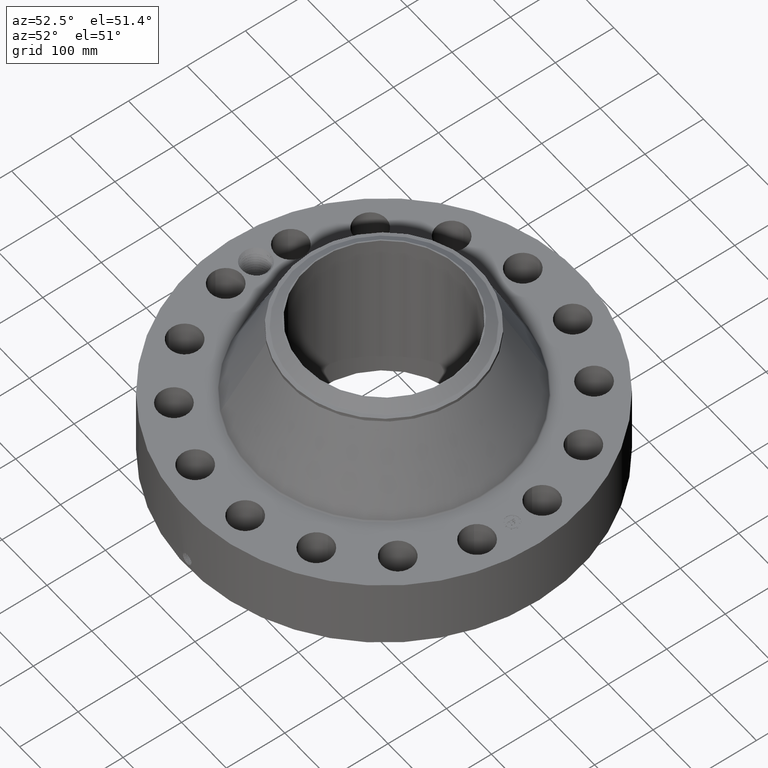
[diagram: clean part render]
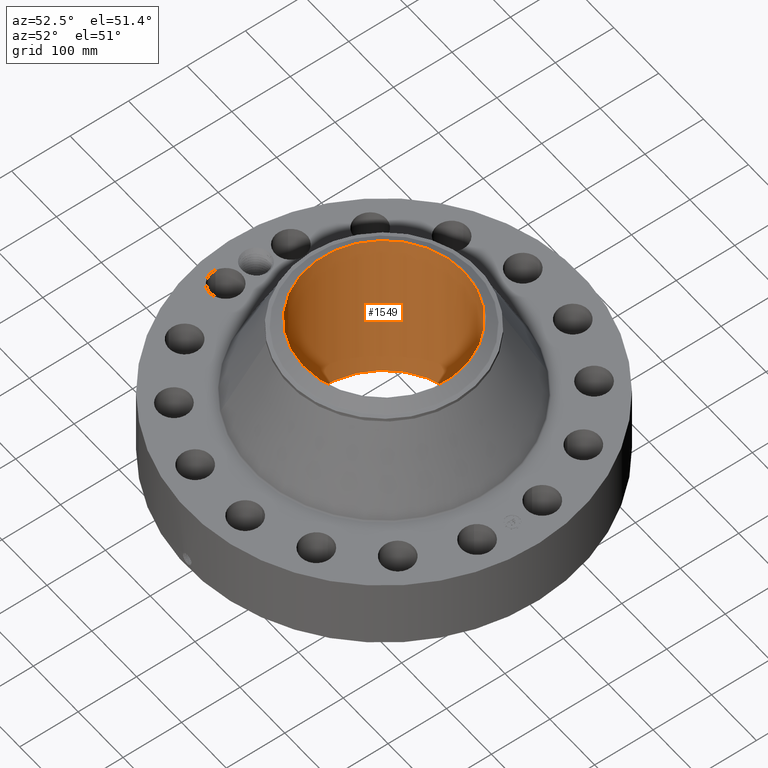
[diagram: same view with one face highlighted and labeled with its STEP entity id]
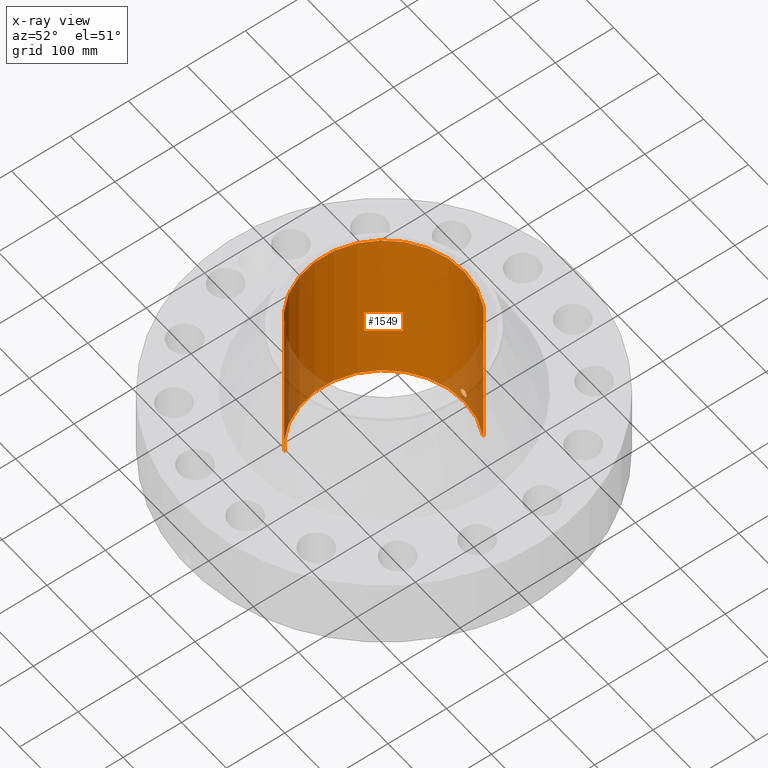
[diagram: x-ray of the same camera — body ghosted, the highlighted face saturated]
A machine part, auxiliary view. The second image highlights one B-rep face of the part: STEP entity #1549.
The next image is the same camera in x-ray: the body ghosted, the highlighted face saturated — about 12% of this face is hidden behind the body in this view.
In plain terms, the highlighted cylindrical surface (partial cylindrical patch) has radius 136.525 mm, axis along (0, 0, -1).
Its self-contained STEP definition (entity closure, byte-faithful):
#271=AXIS2_PLACEMENT_3D('Circle Axis2P3D',#269,#270,$) ;
#1426=AXIS2_PLACEMENT_3D('Cylinder Axis2P3D',#1423,#1424,#1425) ;
#1498=AXIS2_PLACEMENT_3D('Circle Axis2P3D',#1496,#1497,$) ;
#264=CARTESIAN_POINT('Vertex',(2.57691227001,4.71700627018,0.250000000001)) ;
#266=CARTESIAN_POINT('Vertex',(-2.57691227001,-4.71700627018,0.250000000001)) ;
#269=CARTESIAN_POINT('Axis2P3D Location',(0.,0.,0.250000000001)) ;
#1423=CARTESIAN_POINT('Axis2P3D Location',(0.,0.,5.81000000002)) ;
#1432=CARTESIAN_POINT('Vertex',(2.57691227001,4.71700627018,11.37)) ;
#1434=CARTESIAN_POINT('Vertex',(-2.57691227001,-4.71700627018,11.37)) ;
#1437=CARTESIAN_POINT('Line Origine',(2.57691227001,4.71700627018,5.81000000002)) ;
#1442=CARTESIAN_POINT('Line Origine',(-2.57691227001,-4.71700627018,5.81000000002)) ;
#1496=CARTESIAN_POINT('Axis2P3D Location',(0.,0.,11.37)) ;
#1508=CARTESIAN_POINT('Control Point',(0.219395640473,5.37052051045,1.05985638466)) ;
#1509=CARTESIAN_POINT('Control Point',(0.206921684834,5.37103009448,1.0826898073)) ;
#1510=CARTESIAN_POINT('Control Point',(0.191478074429,5.3716247178,1.1038989808)) ;
#1511=CARTESIAN_POINT('Control Point',(0.173344737002,5.37225844318,1.12297077882)) ;
#1512=CARTESIAN_POINT('Control Point',(0.11213345842,5.3740914513,1.17245128575)) ;
#1513=CARTESIAN_POINT('Control Point',(0.0349764935939,5.37528235123,1.19597480752)) ;
#1514=CARTESIAN_POINT('Control Point',(-0.0195660182392,5.37537126655,1.19761228245)) ;
#1515=CARTESIAN_POINT('Control Point',(-0.124153074267,5.37406025242,1.17246700446)) ;
#1516=CARTESIAN_POINT('Control Point',(-0.203198974554,5.37134695756,1.09954893047)) ;
#1517=CARTESIAN_POINT('Control Point',(-0.232174051122,5.37001129445,1.05333021742)) ;
#1518=CARTESIAN_POINT('Control Point',(-0.255834445272,5.36891195524,0.975175509184)) ;
#1519=CARTESIAN_POINT('Control Point',(-0.248293521109,5.3692620356,0.895790868788)) ;
#1520=CARTESIAN_POINT('Control Point',(-0.24205948917,5.36955569445,0.869211169588)) ;
#1521=CARTESIAN_POINT('Control Point',(-0.232322077127,5.36999244174,0.843805298931)) ;
#1522=CARTESIAN_POINT('Control Point',(-0.219395640473,5.37052051045,0.820143615352)) ;
#1523=CARTESIAN_POINT('Vertex',(0.219395640473,5.37052051045,1.05985638466)) ;
#1525=CARTESIAN_POINT('Vertex',(-0.219395640473,5.37052051045,0.820143615352)) ;
#1529=CARTESIAN_POINT('Control Point',(-0.219395640473,5.37052051045,0.820143615352)) ;
#1530=CARTESIAN_POINT('Control Point',(-0.206921684833,5.37103009448,0.797310192712)) ;
#1531=CARTESIAN_POINT('Control Point',(-0.191478074428,5.3716247178,0.776101019206)) ;
#1532=CARTESIAN_POINT('Control Point',(-0.173344737006,5.37225844318,0.757029221191)) ;
#1533=CARTESIAN_POINT('Control Point',(-0.112133458429,5.3740914513,0.707548714262)) ;
#1534=CARTESIAN_POINT('Control Point',(-0.0349764936092,5.37528235123,0.68402519249)) ;
#1535=CARTESIAN_POINT('Control Point',(0.0195660182458,5.37537126655,0.682387717557)) ;
#1536=CARTESIAN_POINT('Control Point',(0.12415307426,5.37406025242,0.707532995552)) ;
#1537=CARTESIAN_POINT('Control Point',(0.203198974541,5.37134695756,0.780451069523)) ;
#1538=CARTESIAN_POINT('Control Point',(0.232174051123,5.37001129445,0.826669782592)) ;
#1539=CARTESIAN_POINT('Control Point',(0.255834445286,5.36891195524,0.904824490873)) ;
#1540=CARTESIAN_POINT('Control Point',(0.2482935211,5.3692620356,0.98420913131)) ;
#1541=CARTESIAN_POINT('Control Point',(0.242059489205,5.36955569445,1.01078883033)) ;
#1542=CARTESIAN_POINT('Control Point',(0.232322077149,5.36999244174,1.03619470104)) ;
#1543=CARTESIAN_POINT('Control Point',(0.219395640473,5.37052051045,1.05985638466)) ;
#270=DIRECTION('Axis2P3D Direction',(0.,0.,-0.0393700787402)) ;
#1424=DIRECTION('Axis2P3D Direction',(0.,0.,-0.0393700787402)) ;
#1425=DIRECTION('Axis2P3D XDirection',(-0.0188750212049,-0.0345504945626,0.)) ;
#1438=DIRECTION('Vector Direction',(0.,0.,-0.0393700787402)) ;
#1443=DIRECTION('Vector Direction',(0.,0.,-0.0393700787402)) ;
#1497=DIRECTION('Axis2P3D Direction',(0.,0.,-0.0393700787402)) ;
#1439=VECTOR('Line Direction',#1438,0.0393700787402) ;
#1444=VECTOR('Line Direction',#1443,0.0393700787402) ;
#1502=ORIENTED_EDGE('',*,*,#1500,.F.) ;
#1503=ORIENTED_EDGE('',*,*,#1446,.T.) ;
#1504=ORIENTED_EDGE('',*,*,#273,.T.) ;
#1505=ORIENTED_EDGE('',*,*,#1441,.F.) ;
#1546=ORIENTED_EDGE('',*,*,#1527,.F.) ;
#1547=ORIENTED_EDGE('',*,*,#1544,.F.) ;
#1548=FACE_BOUND('',#1545,.T.) ;
#1549=ADVANCED_FACE('PartBody',(#1506,#1548),#1427,.F.) ;
#1507=B_SPLINE_CURVE_WITH_KNOTS('',5,(#1508,#1509,#1510,#1511,#1512,#1513,#1514,#1515,#1516,#1517,#1518,#1519,#1520,#1521,#1522),.UNSPECIFIED.,.F.,.U.,(6,3,3,3,6),(0.,4.67396039915,14.0222464041,23.3722421878,28.2157461061),.UNSPECIFIED.) ;
#1528=B_SPLINE_CURVE_WITH_KNOTS('',5,(#1529,#1530,#1531,#1532,#1533,#1534,#1535,#1536,#1537,#1538,#1539,#1540,#1541,#1542,#1543),.UNSPECIFIED.,.F.,.U.,(6,3,3,3,6),(0.,4.67396039924,14.0222464032,23.3722421857,28.2157461125),.UNSPECIFIED.) ;
#272=CIRCLE('generated circle',#271,5.37500000002) ;
#1499=CIRCLE('generated circle',#1498,5.37500000002) ;
#1427=CYLINDRICAL_SURFACE('generated cylinder',#1426,5.37500000002) ;
#273=EDGE_CURVE('',#267,#265,#272,.T.) ;
#1441=EDGE_CURVE('',#1433,#265,#1440,.T.) ;
#1446=EDGE_CURVE('',#1435,#267,#1445,.T.) ;
#1500=EDGE_CURVE('',#1435,#1433,#1499,.T.) ;
#1527=EDGE_CURVE('',#1524,#1526,#1507,.T.) ;
#1544=EDGE_CURVE('',#1526,#1524,#1528,.T.) ;
#1501=EDGE_LOOP('',(#1502,#1503,#1504,#1505)) ;
#1545=EDGE_LOOP('',(#1546,#1547)) ;
#1506=FACE_OUTER_BOUND('',#1501,.T.) ;
#1440=LINE('Line',#1437,#1439) ;
#1445=LINE('Line',#1442,#1444) ;
#265=VERTEX_POINT('',#264) ;
#267=VERTEX_POINT('',#266) ;
#1433=VERTEX_POINT('',#1432) ;
#1435=VERTEX_POINT('',#1434) ;
#1524=VERTEX_POINT('',#1523) ;
#1526=VERTEX_POINT('',#1525) ;